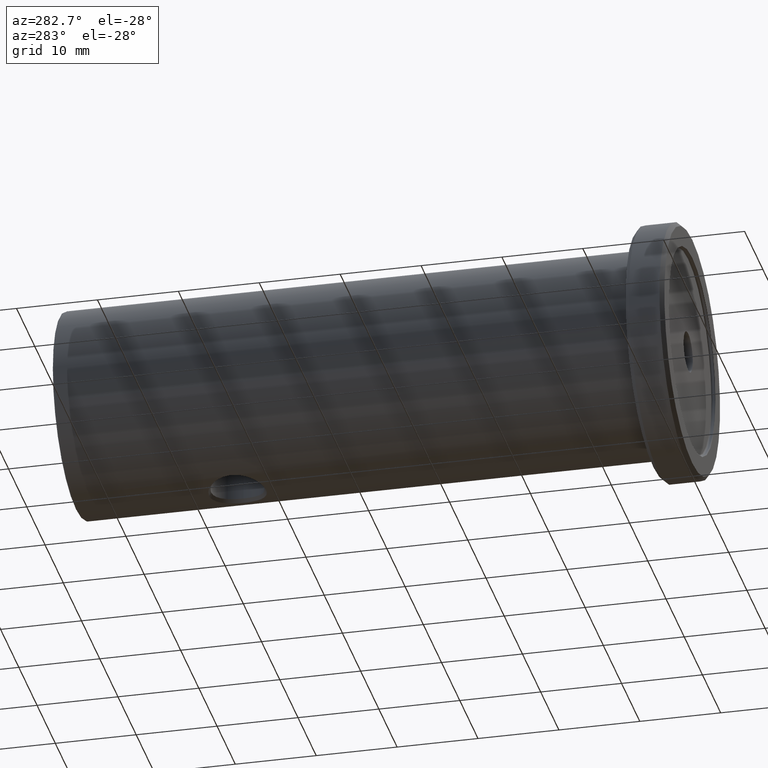
[diagram: clean part render]
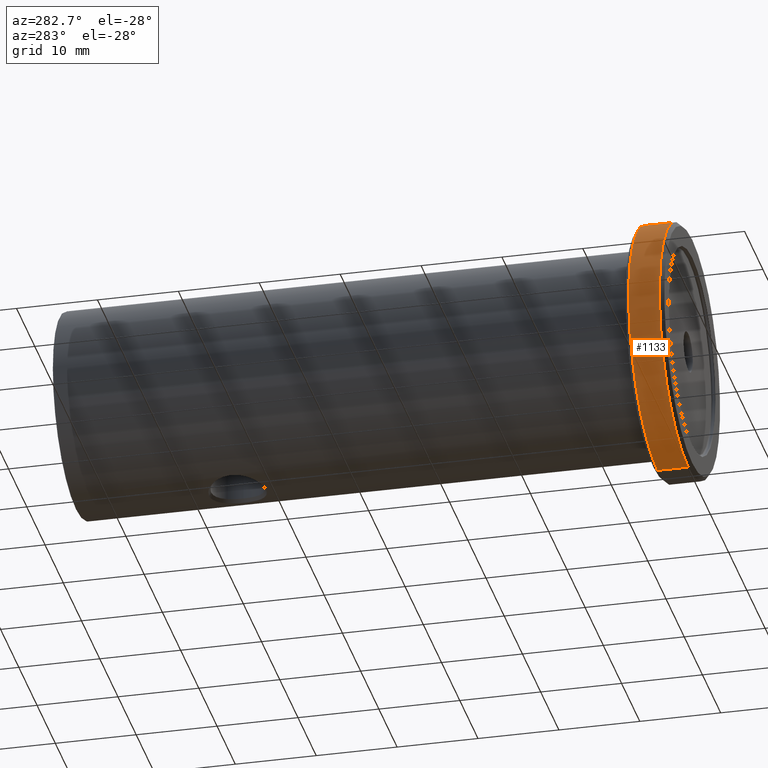
[diagram: same view with one face highlighted and labeled with its STEP entity id]
A machine part, auxiliary view. The second image highlights one B-rep face of the part: STEP entity #1133.
In plain terms, the highlighted cylindrical surface (partial cylindrical patch) has radius 15.75 mm, axis along (-0, -1, -0).
Its self-contained STEP definition (entity closure, byte-faithful):
#7 = AXIS2_PLACEMENT_3D ( 'NONE', #89, #744, #396 ) ;
#64 = CARTESIAN_POINT ( 'NONE',  ( 0.000000000000000000, 4.299999999999994493, -15.75000000000000000 ) ) ;
#89 = CARTESIAN_POINT ( 'NONE',  ( 0.000000000000000000, 4.299999999999994493, 0.000000000000000000 ) ) ;
#90 = VERTEX_POINT ( 'NONE', #64 ) ;
#94 = DIRECTION ( 'NONE',  ( -0.000000000000000000, -1.000000000000000000, -0.000000000000000000 ) ) ;
#155 = ORIENTED_EDGE ( 'NONE', *, *, #1264, .T. ) ;
#203 = LINE ( 'NONE', #638, #661 ) ;
#245 = AXIS2_PLACEMENT_3D ( 'NONE', #725, #94, #509 ) ;
#382 = ORIENTED_EDGE ( 'NONE', *, *, #764, .F. ) ;
#396 = DIRECTION ( 'NONE',  ( 0.000000000000000000, 0.000000000000000000, -1.000000000000000000 ) ) ;
#465 = EDGE_CURVE ( 'NONE', #770, #935, #996, .T. ) ;
#468 = CARTESIAN_POINT ( 'NONE',  ( 0.000000000000000000, -7.650118203309686393, -15.75000000000000000 ) ) ;
#509 = DIRECTION ( 'NONE',  ( 0.000000000000000000, 0.000000000000000000, -1.000000000000000000 ) ) ;
#558 = VECTOR ( 'NONE', #1213, 1000.000000000000000 ) ;
#605 = CARTESIAN_POINT ( 'NONE',  ( 0.000000000000000000, -7.650118203309686393, 0.000000000000000000 ) ) ;
#638 = CARTESIAN_POINT ( 'NONE',  ( 1.928818708657081344E-15, -7.650118203309686393, 15.75000000000000000 ) ) ;
#651 = ORIENTED_EDGE ( 'NONE', *, *, #706, .T. ) ;
#661 = VECTOR ( 'NONE', #721, 1000.000000000000000 ) ;
#662 = ORIENTED_EDGE ( 'NONE', *, *, #465, .F. ) ;
#673 = VERTEX_POINT ( 'NONE', #916 ) ;
#706 = EDGE_CURVE ( 'NONE', #673, #90, #841, .T. ) ;
#721 = DIRECTION ( 'NONE',  ( -0.000000000000000000, -1.000000000000000000, -0.000000000000000000 ) ) ;
#725 = CARTESIAN_POINT ( 'NONE',  ( 0.000000000000000000, 0.5000000000000004441, 0.000000000000000000 ) ) ;
#744 = DIRECTION ( 'NONE',  ( -0.000000000000000000, -1.000000000000000000, -0.000000000000000000 ) ) ;
#764 = EDGE_CURVE ( 'NONE', #673, #770, #203, .T. ) ;
#770 = VERTEX_POINT ( 'NONE', #1273 ) ;
#831 = DIRECTION ( 'NONE',  ( -0.000000000000000000, -1.000000000000000000, -0.000000000000000000 ) ) ;
#841 = CIRCLE ( 'NONE', #7, 15.75000000000000000 ) ;
#907 = FACE_OUTER_BOUND ( 'NONE', #1070, .T. ) ;
#916 = CARTESIAN_POINT ( 'NONE',  ( 1.928818708657081344E-15, 4.299999999999994493, 15.75000000000000000 ) ) ;
#935 = VERTEX_POINT ( 'NONE', #982 ) ;
#982 = CARTESIAN_POINT ( 'NONE',  ( 1.928818708657081344E-15, 0.5000000000000004441, -15.75000000000000000 ) ) ;
#996 = CIRCLE ( 'NONE', #245, 15.75000000000000000 ) ;
#1023 = DIRECTION ( 'NONE',  ( 0.000000000000000000, 0.000000000000000000, -1.000000000000000000 ) ) ;
#1070 = EDGE_LOOP ( 'NONE', ( #382, #651, #155, #662 ) ) ;
#1133 = ADVANCED_FACE ( 'NONE', ( #907 ), #1233, .T. ) ;
#1213 = DIRECTION ( 'NONE',  ( -0.000000000000000000, -1.000000000000000000, -0.000000000000000000 ) ) ;
#1233 = CYLINDRICAL_SURFACE ( 'NONE', #1291, 15.75000000000000000 ) ;
#1264 = EDGE_CURVE ( 'NONE', #90, #935, #1348, .T. ) ;
#1273 = CARTESIAN_POINT ( 'NONE',  ( 0.000000000000000000, 0.5000000000000004441, 15.75000000000000000 ) ) ;
#1291 = AXIS2_PLACEMENT_3D ( 'NONE', #605, #831, #1023 ) ;
#1348 = LINE ( 'NONE', #468, #558 ) ;